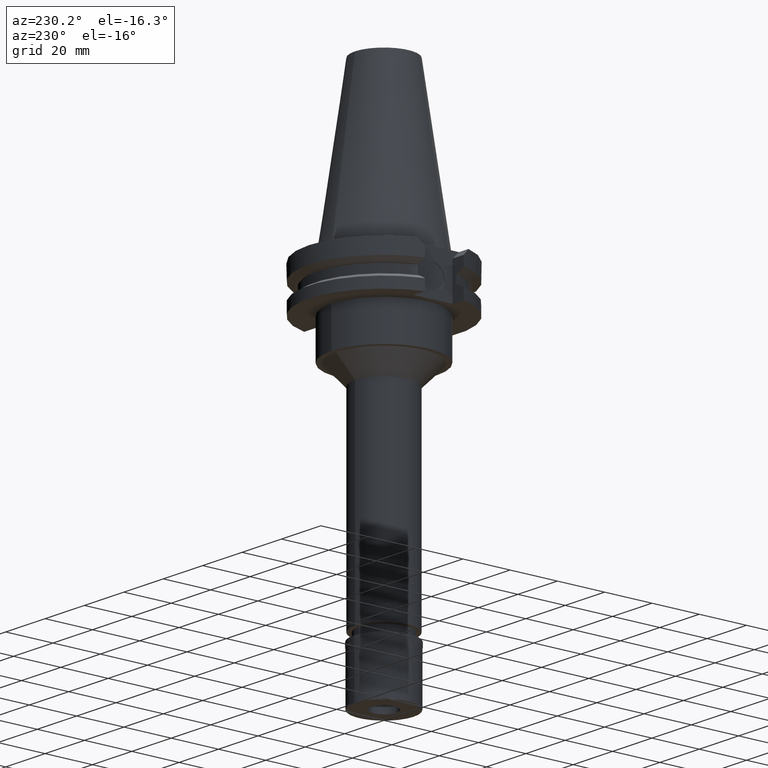
[diagram: clean part render]
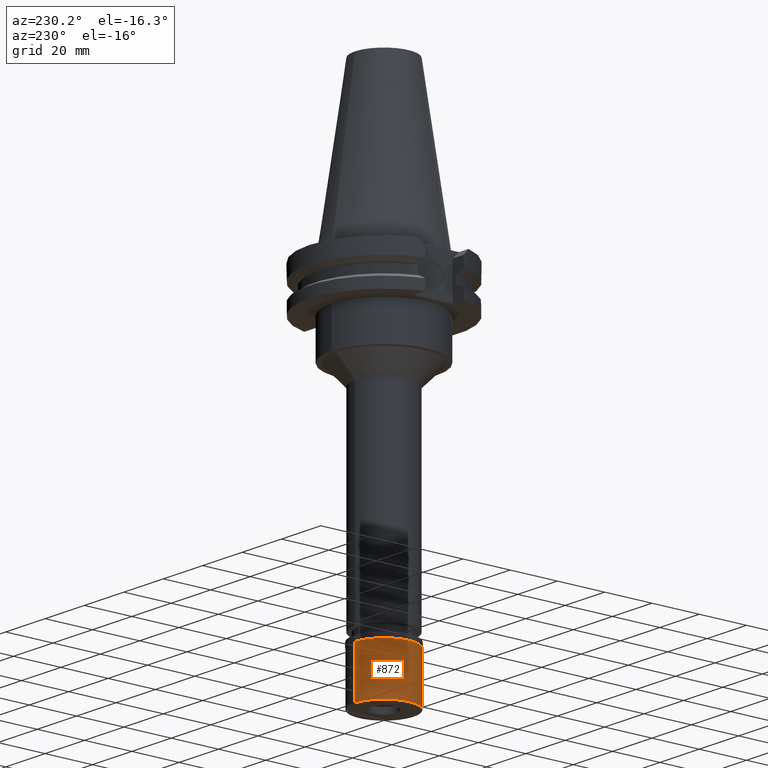
[diagram: same view with one face highlighted and labeled with its STEP entity id]
A machine part, auxiliary view. The second image highlights one B-rep face of the part: STEP entity #872.
In plain terms, the highlighted cylindrical surface (partial cylindrical patch) has radius 12.5 mm, axis along (0, 0, -1).
Its self-contained STEP definition (entity closure, byte-faithful):
#32 = VERTEX_POINT ( 'NONE', #3315 ) ;
#59 = CARTESIAN_POINT ( 'NONE',  ( 0.0000000000000000000, -12.50000000000000000, -2.100000000000000089 ) ) ;
#242 = VERTEX_POINT ( 'NONE', #1797 ) ;
#503 = LINE ( 'NONE', #2558, #536 ) ;
#536 = VECTOR ( 'NONE', #1638, 1000.000000000000000 ) ;
#645 = CARTESIAN_POINT ( 'NONE',  ( 0.0000000000000000000, -12.50000000000000000, -2.100000000000000089 ) ) ;
#655 = ORIENTED_EDGE ( 'NONE', *, *, #939, .T. ) ;
#656 = DIRECTION ( 'NONE',  ( 0.0000000000000000000, 0.0000000000000000000, -1.000000000000000000 ) ) ;
#680 = LINE ( 'NONE', #645, #2991 ) ;
#794 = ORIENTED_EDGE ( 'NONE', *, *, #3089, .F. ) ;
#813 = EDGE_CURVE ( 'NONE', #2638, #242, #503, .T. ) ;
#830 = CYLINDRICAL_SURFACE ( 'NONE', #1988, 12.50000000000000000 ) ;
#851 = CARTESIAN_POINT ( 'NONE',  ( 0.0000000000000000000, 0.0000000000000000000, -22.89999999999999858 ) ) ;
#872 = ADVANCED_FACE ( 'NONE', ( #2134 ), #830, .T. ) ;
#873 = ORIENTED_EDGE ( 'NONE', *, *, #813, .T. ) ;
#939 = EDGE_CURVE ( 'NONE', #242, #32, #1183, .T. ) ;
#1088 = VERTEX_POINT ( 'NONE', #59 ) ;
#1094 = AXIS2_PLACEMENT_3D ( 'NONE', #2223, #3273, #1632 ) ;
#1137 = DIRECTION ( 'NONE',  ( 0.0000000000000000000, 1.000000000000000000, 0.0000000000000000000 ) ) ;
#1183 = CIRCLE ( 'NONE', #1719, 12.50000000000000000 ) ;
#1337 = CARTESIAN_POINT ( 'NONE',  ( 0.0000000000000000000, 0.0000000000000000000, 0.0000000000000000000 ) ) ;
#1454 = ORIENTED_EDGE ( 'NONE', *, *, #2516, .T. ) ;
#1489 = EDGE_LOOP ( 'NONE', ( #655, #794, #1454, #873 ) ) ;
#1632 = DIRECTION ( 'NONE',  ( 0.0000000000000000000, -1.000000000000000000, 0.0000000000000000000 ) ) ;
#1638 = DIRECTION ( 'NONE',  ( 0.0000000000000000000, 0.0000000000000000000, -1.000000000000000000 ) ) ;
#1719 = AXIS2_PLACEMENT_3D ( 'NONE', #851, #1859, #1137 ) ;
#1797 = CARTESIAN_POINT ( 'NONE',  ( 0.0000000000000000000, 12.50000000000000000, -22.89999999999999858 ) ) ;
#1859 = DIRECTION ( 'NONE',  ( 0.0000000000000000000, 0.0000000000000000000, 1.000000000000000000 ) ) ;
#1988 = AXIS2_PLACEMENT_3D ( 'NONE', #1337, #656, #2383 ) ;
#2007 = CARTESIAN_POINT ( 'NONE',  ( 0.0000000000000000000, 12.50000000000000000, -2.100000000000000089 ) ) ;
#2134 = FACE_OUTER_BOUND ( 'NONE', #1489, .T. ) ;
#2223 = CARTESIAN_POINT ( 'NONE',  ( 0.0000000000000000000, 0.0000000000000000000, -2.100000000000000089 ) ) ;
#2383 = DIRECTION ( 'NONE',  ( 0.0000000000000000000, -1.000000000000000000, 0.0000000000000000000 ) ) ;
#2409 = DIRECTION ( 'NONE',  ( 0.0000000000000000000, 0.0000000000000000000, -1.000000000000000000 ) ) ;
#2516 = EDGE_CURVE ( 'NONE', #1088, #2638, #2716, .T. ) ;
#2558 = CARTESIAN_POINT ( 'NONE',  ( 0.0000000000000000000, 12.50000000000000000, -2.100000000000000089 ) ) ;
#2638 = VERTEX_POINT ( 'NONE', #2007 ) ;
#2716 = CIRCLE ( 'NONE', #1094, 12.50000000000000000 ) ;
#2991 = VECTOR ( 'NONE', #2409, 1000.000000000000000 ) ;
#3089 = EDGE_CURVE ( 'NONE', #1088, #32, #680, .T. ) ;
#3273 = DIRECTION ( 'NONE',  ( 0.0000000000000000000, 0.0000000000000000000, -1.000000000000000000 ) ) ;
#3315 = CARTESIAN_POINT ( 'NONE',  ( 0.0000000000000000000, -12.50000000000000000, -22.89999999999999858 ) ) ;